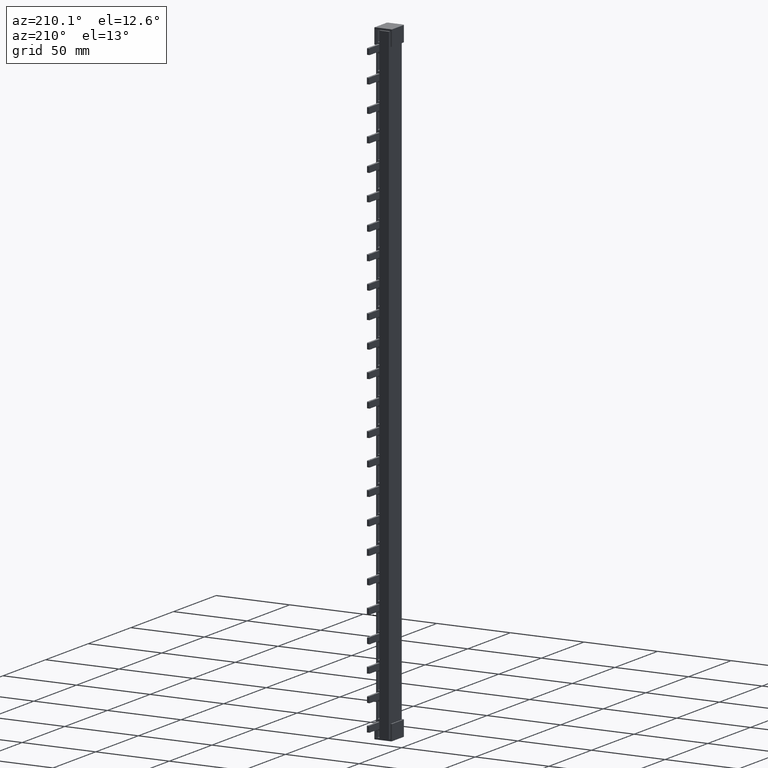
[diagram: clean part render]
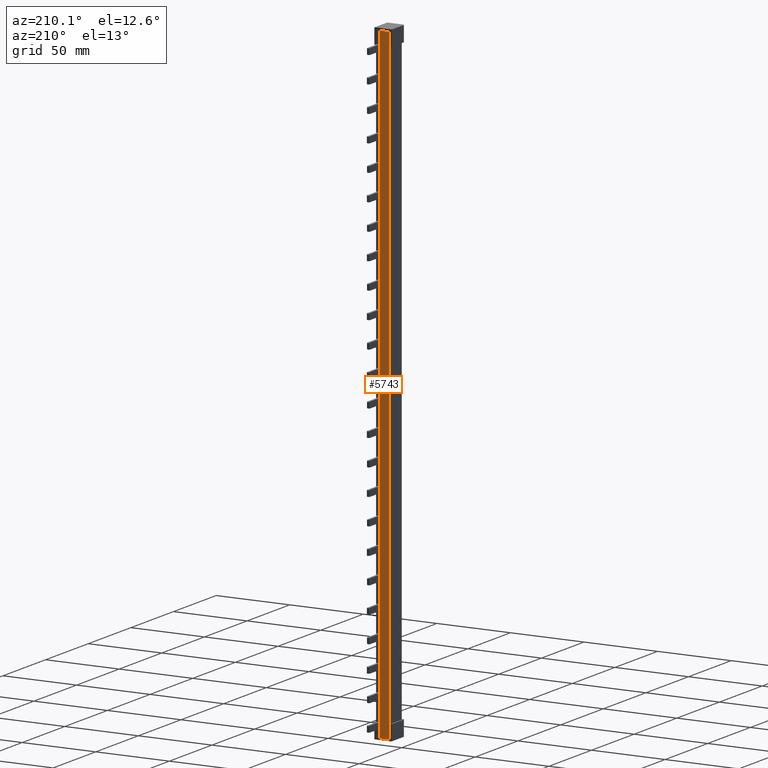
[diagram: same view with one face highlighted and labeled with its STEP entity id]
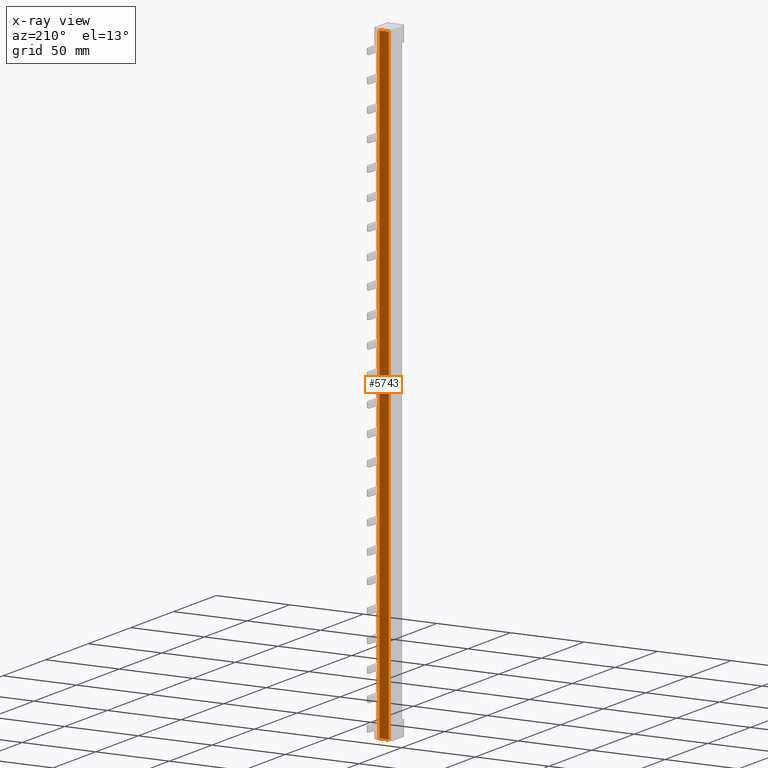
[diagram: x-ray of the same camera — body ghosted, the highlighted face saturated]
A machine part, auxiliary view. The second image highlights one B-rep face of the part: STEP entity #5743.
The next image is the same camera in x-ray: the body ghosted, the highlighted face saturated — about 0% of this face is hidden behind the body in this view.
In plain terms, the highlighted planar face has unit normal (0, -1, 0).
Its self-contained STEP definition (entity closure, byte-faithful):
#2933 = CARTESIAN_POINT ( 'NONE',  ( 6.499999999999950300, 14.99999999999998600, 217.7999999999999800 ) ) ;
#2938 = PLANE ( 'NONE',  #3324 ) ;
#2964 = FACE_OUTER_BOUND ( 'NONE', #28414, .T. ) ;
#2988 = DIRECTION ( 'NONE',  ( 0.0000000000000000000, -1.000000000000000000, 0.0000000000000000000 ) ) ;
#3015 = DIRECTION ( 'NONE',  ( 0.0000000000000000000, -0.0000000000000000000, -1.000000000000000000 ) ) ;
#3324 = AXIS2_PLACEMENT_3D ( 'NONE', #2933, #2988, #3015 ) ;
#5743 = ADVANCED_FACE ( 'NONE', ( #2964 ), #2938, .F. ) ;
#7872 = LINE ( 'NONE', #7874, #23332 ) ;
#7874 = CARTESIAN_POINT ( 'NONE',  ( 6.499999999999950300, 14.99999999999998600, 217.7999999999999800 ) ) ;
#7875 = DIRECTION ( 'NONE',  ( -0.0000000000000000000, 0.0000000000000000000, 1.000000000000000000 ) ) ;
#18160 = ORIENTED_EDGE ( 'NONE', *, *, #37695, .T. ) ;
#18224 = ORIENTED_EDGE ( 'NONE', *, *, #37708, .F. ) ;
#18236 = ORIENTED_EDGE ( 'NONE', *, *, #37710, .F. ) ;
#18244 = ORIENTED_EDGE ( 'NONE', *, *, #37606, .F. ) ;
#23332 = VECTOR ( 'NONE', #7875, 1000.000000000000000 ) ;
#23384 = VECTOR ( 'NONE', #23557, 1000.000000000000000 ) ;
#23394 = VECTOR ( 'NONE', #23512, 1000.000000000000000 ) ;
#23404 = VECTOR ( 'NONE', #23575, 1000.000000000000000 ) ;
#23511 = LINE ( 'NONE', #23536, #23394 ) ;
#23512 = DIRECTION ( 'NONE',  ( -0.0000000000000000000, -0.0000000000000000000, 1.000000000000000000 ) ) ;
#23522 = LINE ( 'NONE', #23582, #23384 ) ;
#23536 = CARTESIAN_POINT ( 'NONE',  ( 0.0000000000000000000, 14.99999999999998600, 217.7999999999999800 ) ) ;
#23557 = DIRECTION ( 'NONE',  ( 1.000000000000000000, 0.0000000000000000000, 0.0000000000000000000 ) ) ;
#23565 = CARTESIAN_POINT ( 'NONE',  ( 6.499999999999950300, 14.99999999999998600, 217.7999999999999800 ) ) ;
#23566 = LINE ( 'NONE', #23565, #23404 ) ;
#23575 = DIRECTION ( 'NONE',  ( -1.000000000000000000, -0.0000000000000000000, -0.0000000000000000000 ) ) ;
#23582 = CARTESIAN_POINT ( 'NONE',  ( 6.499999999999950300, 14.99999999999998600, -208.8000000000000400 ) ) ;
#28414 = EDGE_LOOP ( 'NONE', ( #18236, #18244, #18224, #18160 ) ) ;
#34723 = VERTEX_POINT ( 'NONE', #41560 ) ;
#34735 = VERTEX_POINT ( 'NONE', #41575 ) ;
#34738 = VERTEX_POINT ( 'NONE', #41581 ) ;
#34747 = VERTEX_POINT ( 'NONE', #41534 ) ;
#37606 = EDGE_CURVE ( 'NONE', #34738, #34735, #7872, .T. ) ;
#37695 = EDGE_CURVE ( 'NONE', #34723, #34747, #23511, .T. ) ;
#37708 = EDGE_CURVE ( 'NONE', #34723, #34738, #23522, .T. ) ;
#37710 = EDGE_CURVE ( 'NONE', #34735, #34747, #23566, .T. ) ;
#41534 = CARTESIAN_POINT ( 'NONE',  ( 0.0000000000000000000, 14.99999999999998600, 217.7999999999999800 ) ) ;
#41560 = CARTESIAN_POINT ( 'NONE',  ( 0.0000000000000000000, 14.99999999999998600, -208.8000000000002400 ) ) ;
#41575 = CARTESIAN_POINT ( 'NONE',  ( 6.499999999999950300, 14.99999999999998600, 217.7999999999999800 ) ) ;
#41581 = CARTESIAN_POINT ( 'NONE',  ( 6.499999999999950300, 14.99999999999998600, -208.8000000000000100 ) ) ;